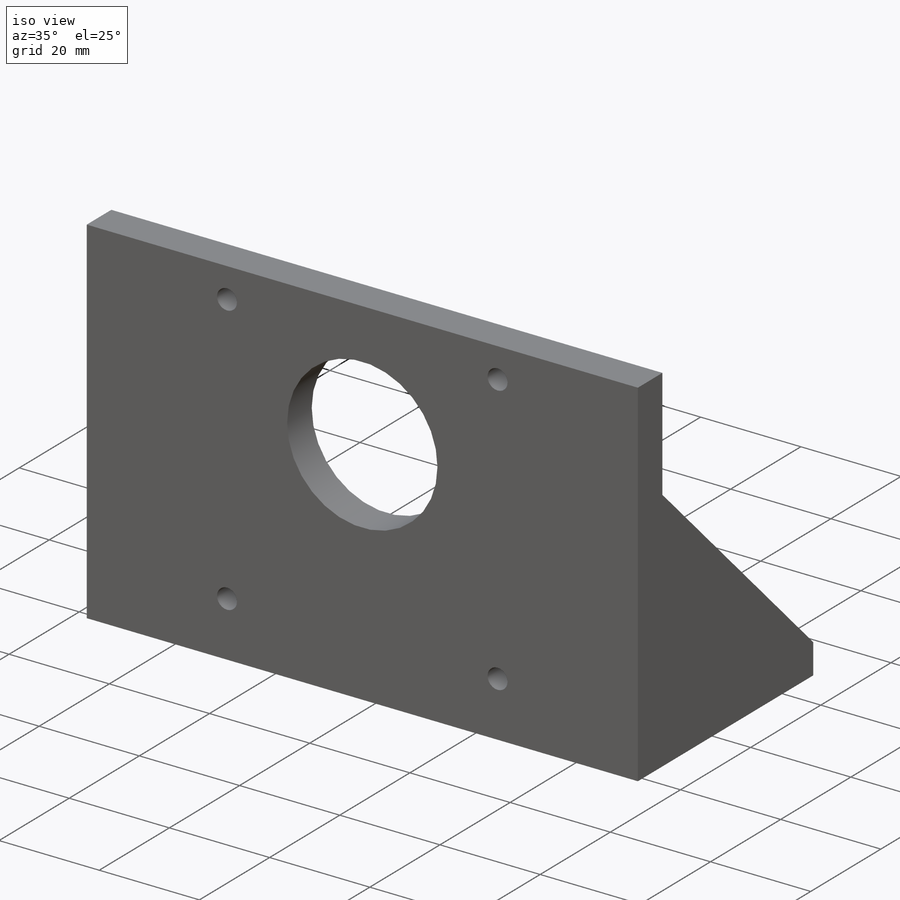
[diagram: iso view]
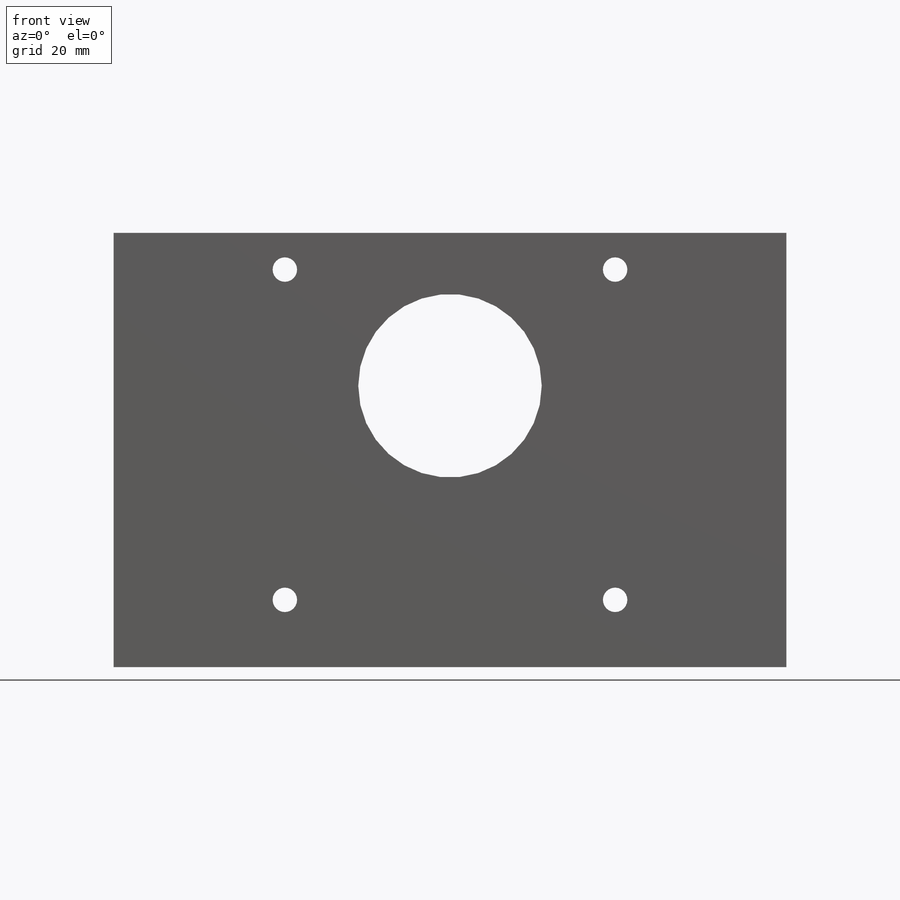
[diagram: front view]
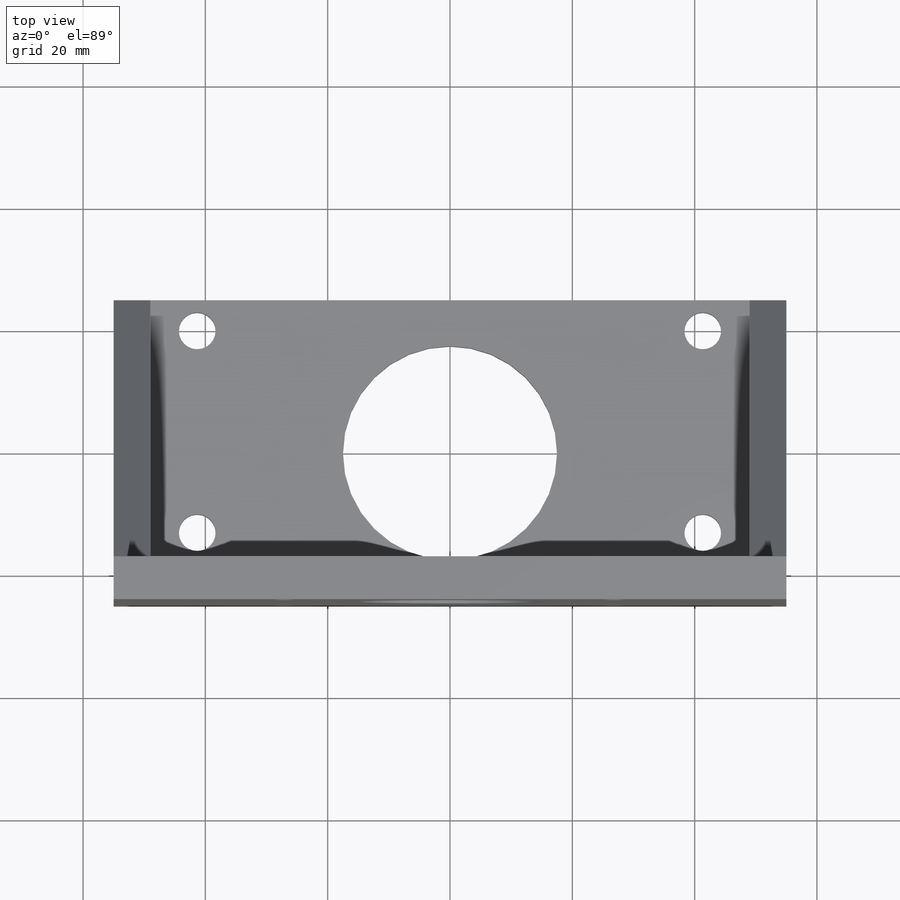
[diagram: top view]
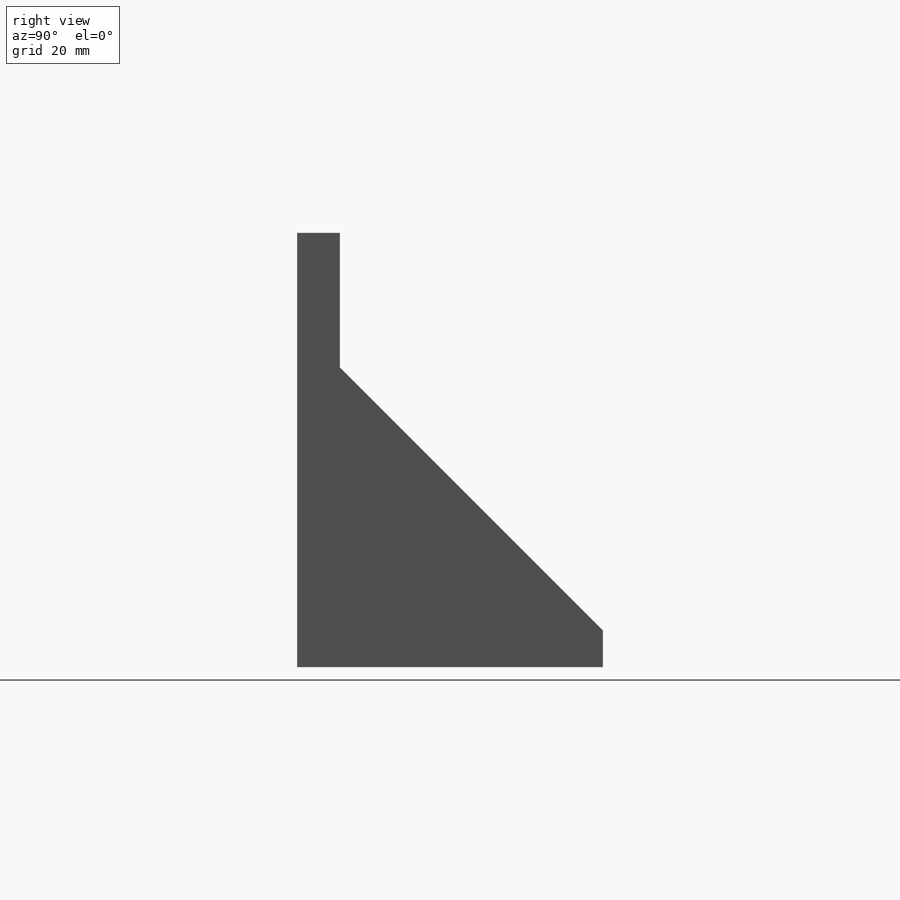
[diagram: right view]
SOLIDWORKS PART (.sldprt)
format: sldprt  version: not decoded by parser v0  size: 229,376 bytes
history: native  units: mm
features: sketch x7, extrude x4, cut_extrude x3, plane x2, material x1 (+12 scaffold rows collapsed)
feature tree (29):
  scaffold x12  (default folders/planes/origin — collapsed)
  material  "Material <not specified>"
  sketch  "Sketch1"  dims[D1=110.0mm D2=50.0mm D3=7.5mm]
  extrude  "Boss-Extrude1"  Depth=6mm
  sketch  "Sketch2"  dims[D1=7.0mm]
  extrude  "Boss-Extrude2"  Depth=65mm
  plane  "Plane1"  Offset=0mm
  sketch  "Sketch3"  dims[D1=43.0mm D2=43.0mm]
  extrude  "Boss-Extrude3"  Depth=6mm
  plane  "Plane2"  Offset=0mm
  sketch  "Sketch4"
  extrude  "Boss-Extrude4"  Depth=6mm
  sketch  "Sketch5"  dims[D1=10.0mm D2=15.0mm]
  cut_extrude  "Cut-Extrude1"  [1 undecoded]
  sketch  "Sketch6"  dims[c1.D3=~3.297582mm c1.D1=5.0mm c1.D2=5.0mm c2.D3=33.0mm c2.D4=~82.659398mm]
  cut_extrude  "Cut-Extrude2"  [1 undecoded]
  sketch  "Sketch7"  dims[c1.D2=~2.752484mm c1.D6=~4.31565mm c1.D1=54.0mm c2.D2=~64.957743mm c2.D1=6.0mm c3.D2=6.0mm c3.D3=54.0mm c3.D4=54.0mm c3.D5=54.0mm]
  cut_extrude  "Cut-Extrude3"  [1 undecoded]
decode coverage: 10 of 14 modeling features carry decoded parameters
note: ~ marks probable driven/reference dimensions
note: 3 parameter values undecoded
summary: no parameter record found for 3 features
note: suppression state not decoded; provenance and decode notes live in map.json
